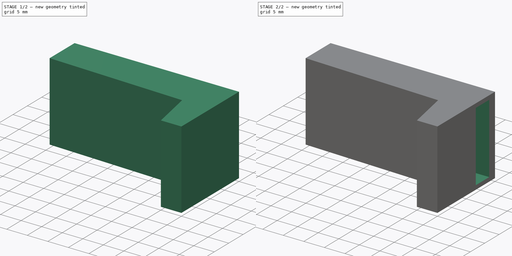
[diagram: build sequence overview — one tinted view per stage of 2, left to right]
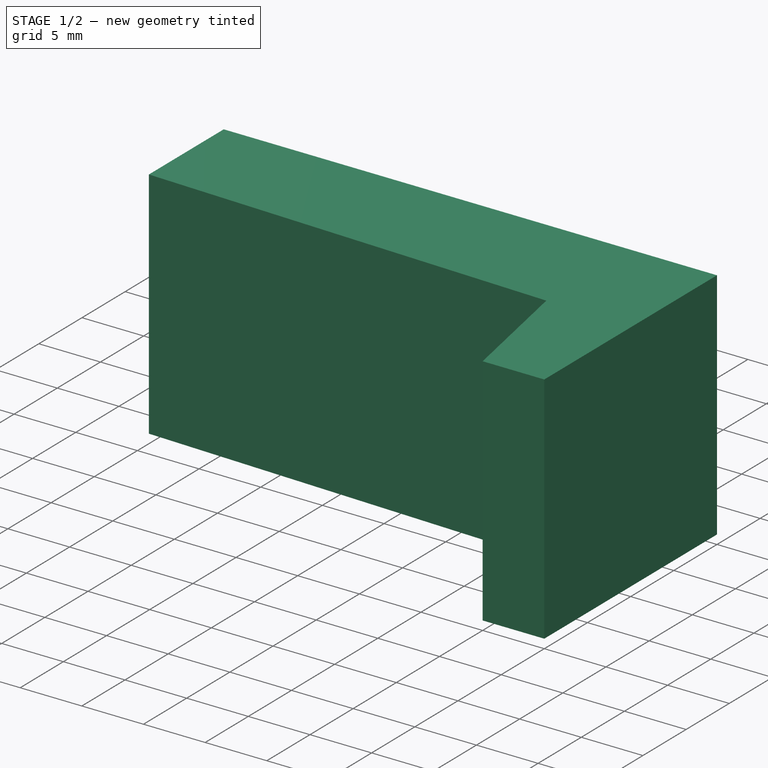
[diagram: stage 1 of 2 — iso view after this stage's code; geometry added in this stage tinted green]
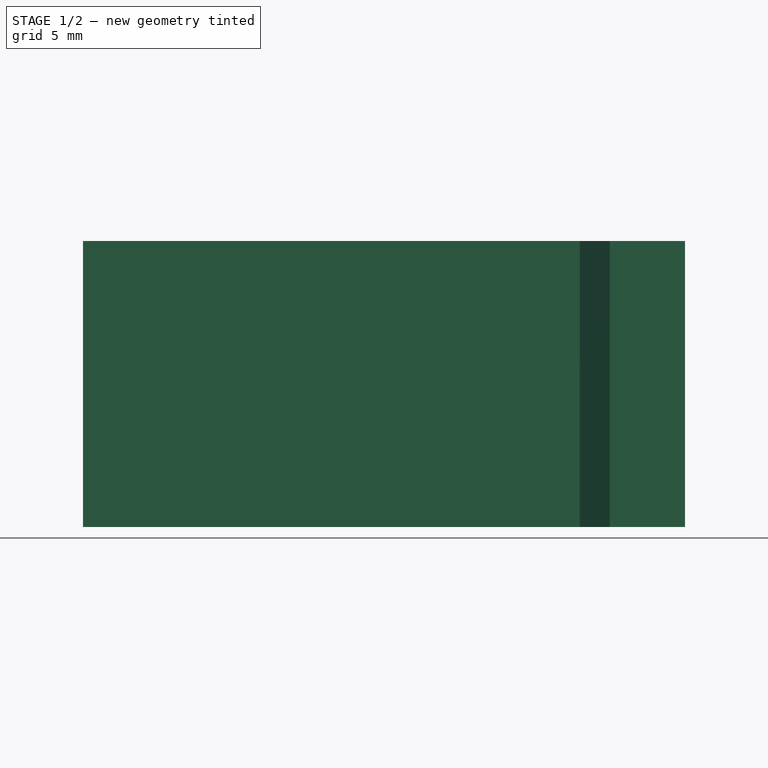
[diagram: stage 1 of 2 — front view after this stage's code; geometry added in this stage tinted green]
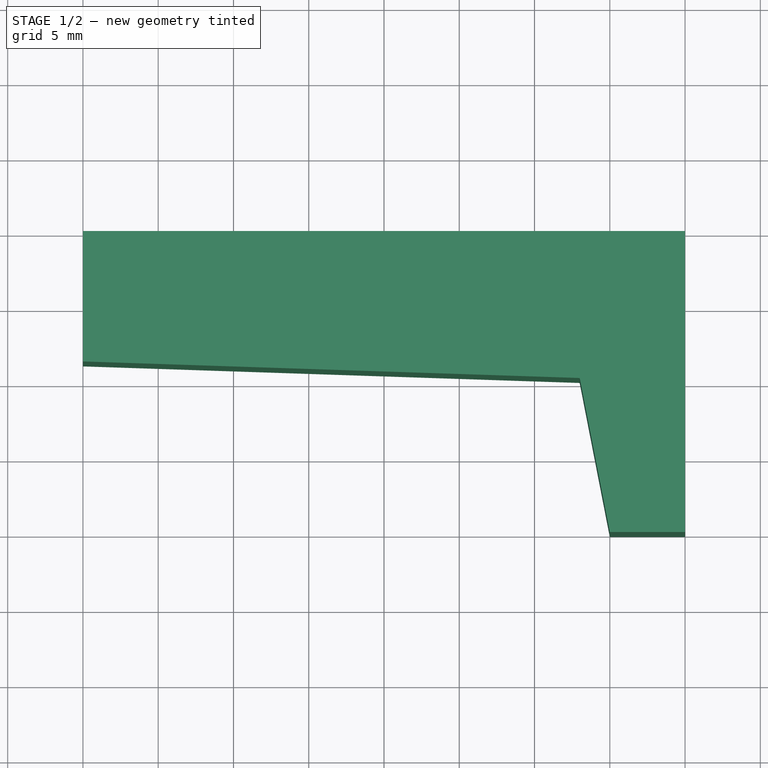
[diagram: stage 1 of 2 — top view after this stage's code; geometry added in this stage tinted green]
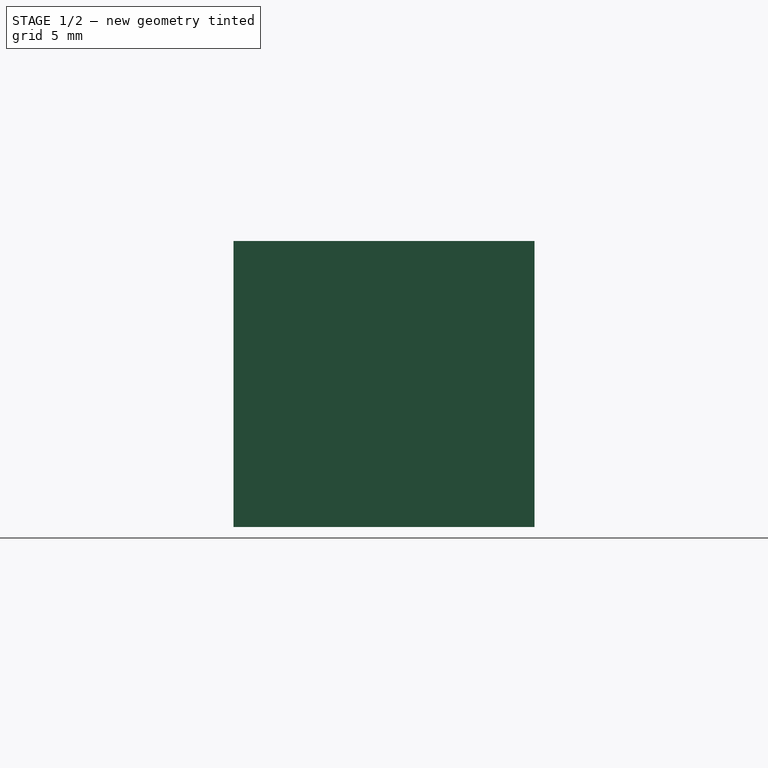
[diagram: stage 1 of 2 — right view after this stage's code; geometry added in this stage tinted green]
FCSTD DOCUMENT  (FreeCAD 0.16R6712 (Git))
Label: cnc_peg_15mm_belt_v19_10
License: All rights reserved
LicenseURL: http://en.wikipedia.org/wiki/All_rights_reserved
objects: Sketcher::SketchObject×2, PartDesign::Pad×1, PartDesign::Pocket×1
note: 6 computed .brp shape members not serialized (recipe doc carries the construction recipe); baked Part::Feature solids carry a one-line shape summary decoded from their .brp

FEATURE [Sketcher::SketchObject] Sketch  label="peg_sketch"
  sketch-geometry (10):
    g0: LineSegment [constr] StartX=0 StartY=0 StartZ=0 EndX=-60 EndY=0 EndZ=0
    g1: LineSegment StartX=0 StartY=0 StartZ=0 EndX=0 EndY=-10 EndZ=0
    g2: LineSegment StartX=0 StartY=0 StartZ=0 EndX=-40 EndY=0 EndZ=0
    g3: LineSegment [constr] StartX=-60 StartY=0 StartZ=0 EndX=-60 EndY=-8 EndZ=0
    g4: LineSegment [constr] StartX=-60 StartY=-8 StartZ=0 EndX=0 EndY=-10 EndZ=0
    g5: LineSegment StartX=-40 StartY=0 StartZ=0 EndX=-40 EndY=-8.66667 EndZ=0
    g6: LineSegment StartX=0 StartY=-10 StartZ=0 EndX=0 EndY=-20 EndZ=0
    g7: LineSegment StartX=0 StartY=-20 StartZ=0 EndX=-5 EndY=-20 EndZ=0
    g8: LineSegment StartX=-5 StartY=-20 StartZ=0 EndX=-7 EndY=-9.76667 EndZ=0
    g9: LineSegment StartX=-40 StartY=-8.66667 StartZ=0 EndX=-7 EndY=-9.76667 EndZ=0
  constraints (28):
    c: Coincident(g0,g-1)
    c: PointOnObject(g0,g-1)
    c: Coincident(g1,g-1)
    c: PointOnObject(g1,g-2)
    c: DistanceX(g0,g0) = 60
    c: DistanceY(g1,g1) = 10
    c: Coincident(g2,g-1)
    c: PointOnObject(g2,g0)
    c: DistanceX(g2,g-1) = 40
    c: Coincident(g3,g0)
    c: Vertical(g3)
    c: DistanceY(g3,g3) = 8
    c: Coincident(g4,g3)
    c: Coincident(g5,g2)
    c: PointOnObject(g5,g4)
    c: Vertical(g5)
    c: Coincident(g4,g1)
    c: Coincident(g6,g1)
    c: PointOnObject(g6,g-2)
    c: Coincident(g7,g6)
    c: Horizontal(g7)
    c: DistanceX(g7,g7) = 5
    c: Coincident(g8,g7)
    c: PointOnObject(g8,g4)
    c: DistanceX(g8,g1) = 7
    c: Coincident(g9,g5)
    c: Coincident(g9,g8)
    c: DistanceY(g6,g6) = 10
FEATURE [PartDesign::Pad] Pad  label="peg_pad"
  Length = 19
  Length2 = 100
  Sketch = -> Sketch
  Type = 0
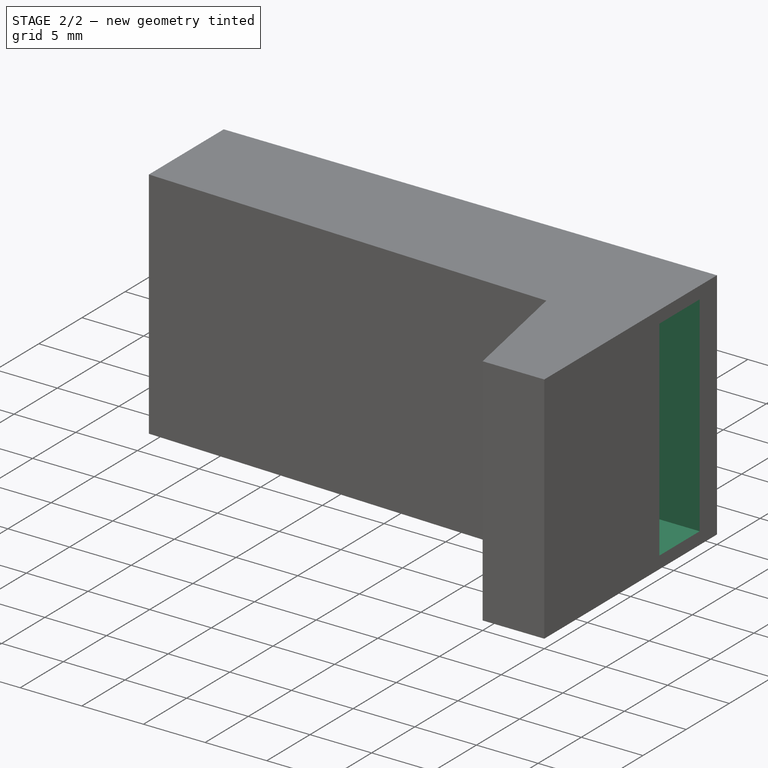
[diagram: stage 2 of 2 — iso view after this stage's code; geometry added in this stage tinted green]
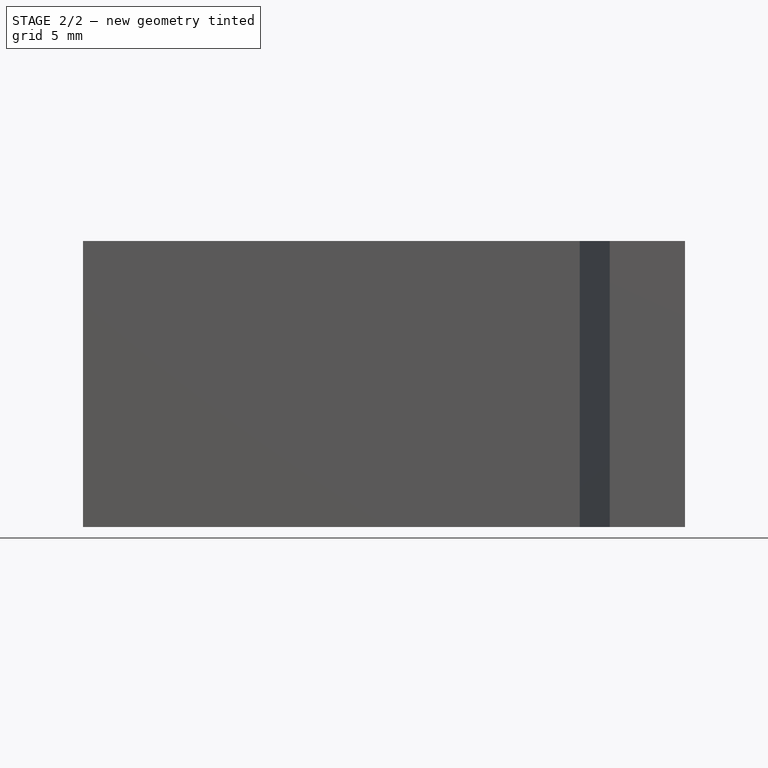
[diagram: stage 2 of 2 — front view after this stage's code; geometry added in this stage tinted green]
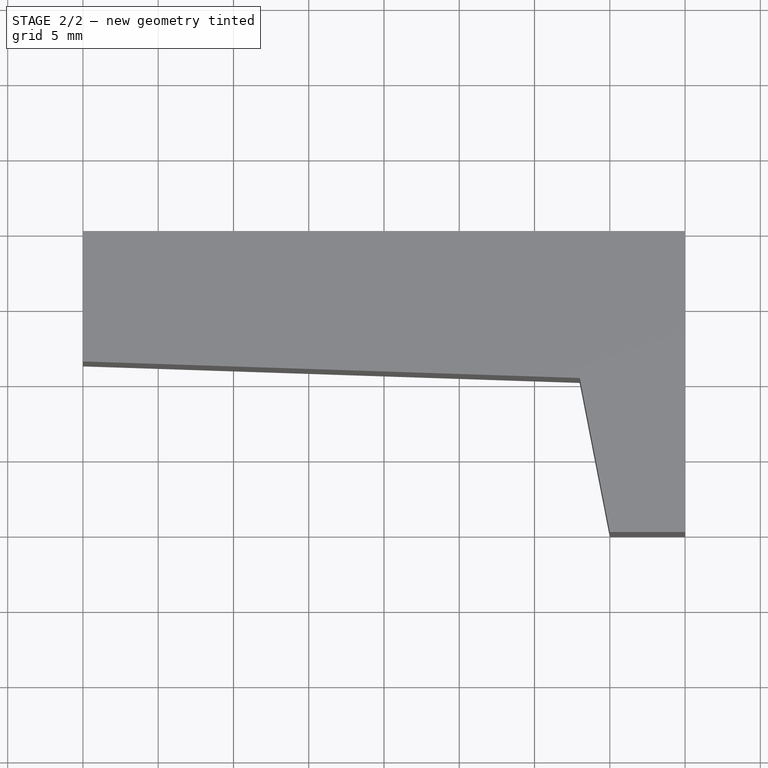
[diagram: stage 2 of 2 — top view after this stage's code; geometry added in this stage tinted green]
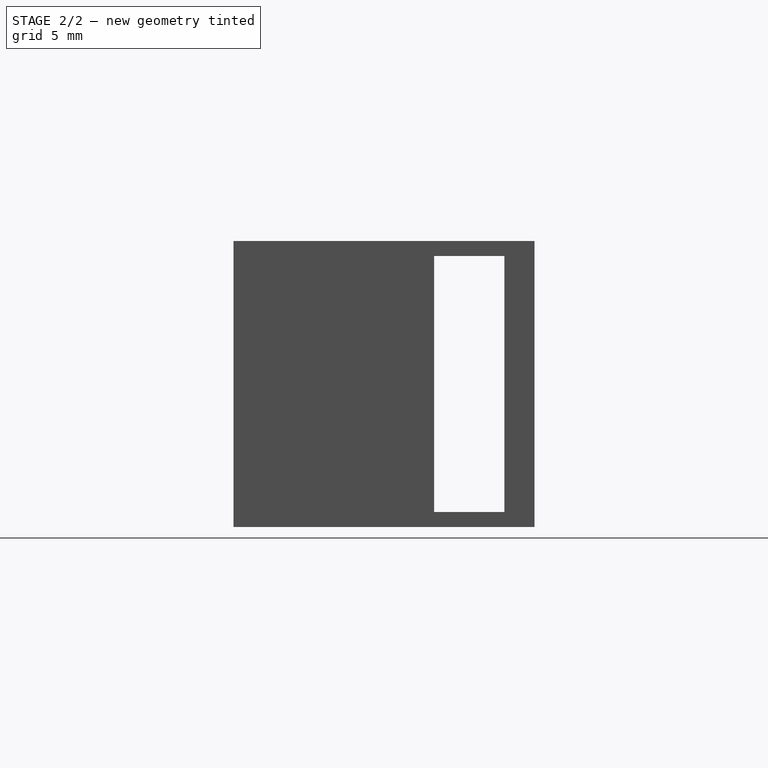
[diagram: stage 2 of 2 — right view after this stage's code; geometry added in this stage tinted green]
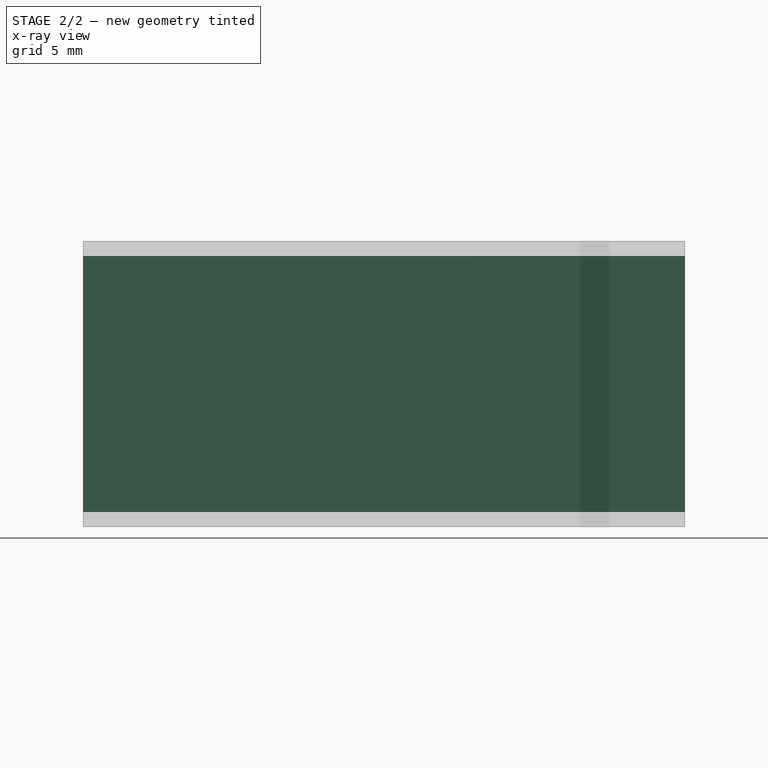
[diagram: stage 2 of 2 — x-ray composite at the front view; earlier geometry ghosted, this stage's added geometry solid]
FEATURE [Sketcher::SketchObject] Sketch001  label="belt_hole_sketch"
  ExternalGeometry = -> [Pad]
  Placement = pos=(-40,0,0) rot=(0.57735,-0.57735,-0.57735;2.0944rad)
  Support = -> Pad [Face6]
  sketch-geometry (8):
    g0: LineSegment [constr] StartX=0 StartY=0 StartZ=0 EndX=2 EndY=0 EndZ=0
    g1: LineSegment [constr] StartX=2 StartY=0 StartZ=0 EndX=2 EndY=1 EndZ=0
    g2: LineSegment [constr] StartX=2 StartY=1 StartZ=0 EndX=0 EndY=1 EndZ=0
    g3: LineSegment [constr] StartX=0 StartY=1 StartZ=0 EndX=0 EndY=0 EndZ=0
    g4: LineSegment StartX=2 StartY=1 StartZ=0 EndX=6.66667 EndY=1 EndZ=0
    g5: LineSegment StartX=6.66667 StartY=1 StartZ=0 EndX=6.66667 EndY=18 EndZ=0
    g6: LineSegment StartX=6.66667 StartY=18 StartZ=0 EndX=2 EndY=18 EndZ=0
    g7: LineSegment StartX=2 StartY=18 StartZ=0 EndX=2 EndY=1 EndZ=0
  constraints (22):
    c: Coincident(g0,g1)
    c: Coincident(g1,g2)
    c: Coincident(g2,g3)
    c: Coincident(g3,g0)
    c: Horizontal(g0)
    c: Horizontal(g2)
    c: Vertical(g1)
    c: Vertical(g3)
    c: Coincident(g0,g-1)
    c: DistanceY(g3,g3) = 1
    c: DistanceX(g0,g0) = 2
    c: Coincident(g4,g5)
    c: Coincident(g5,g6)
    c: Coincident(g6,g7)
    c: Coincident(g7,g4)
    c: Horizontal(g4)
    c: Horizontal(g6)
    c: Vertical(g5)
    c: Vertical(g7)
    c: Coincident(g4,g1)
    c: DistanceY(g7,g7) = 17
    c: DistanceX(g5,g-3) = 2
FEATURE [PartDesign::Pocket] Pocket  label="belt_hole_pocket"
  Length = 5
  Sketch = -> Sketch001
  Type = 1
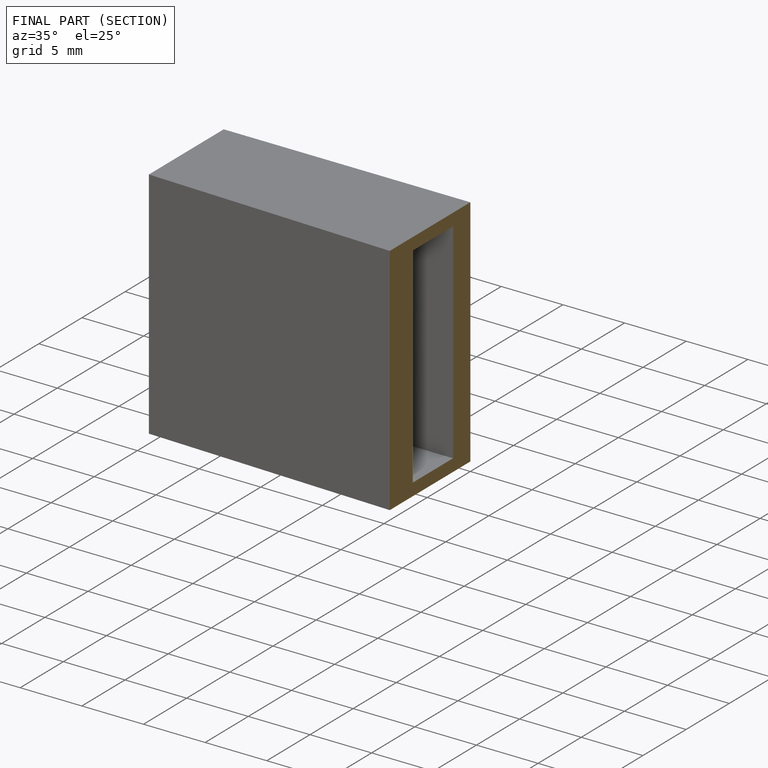
[diagram: finished part — half-section view (interior)]
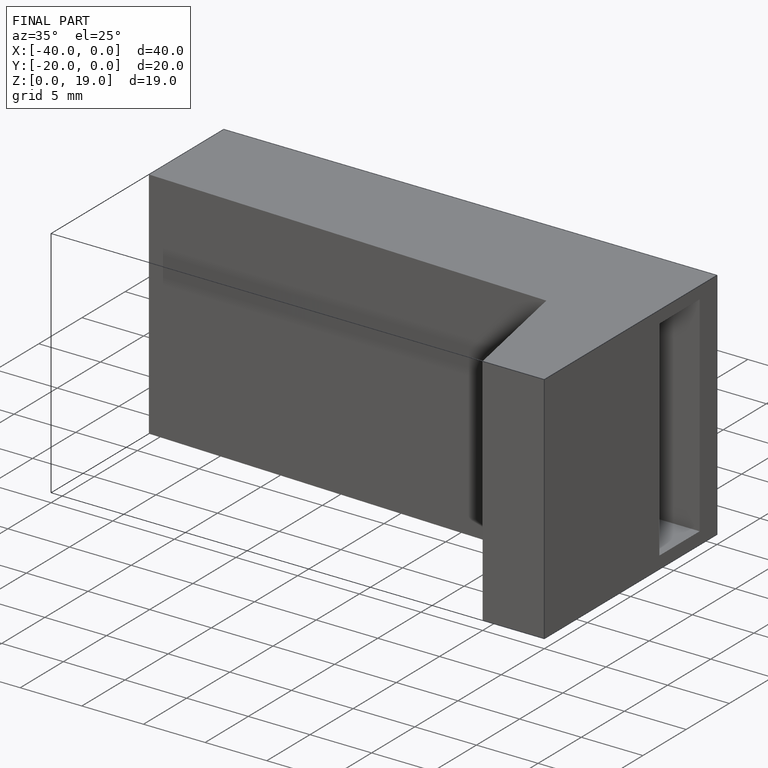
[diagram: finished part — iso view with bounding-box wireframe]
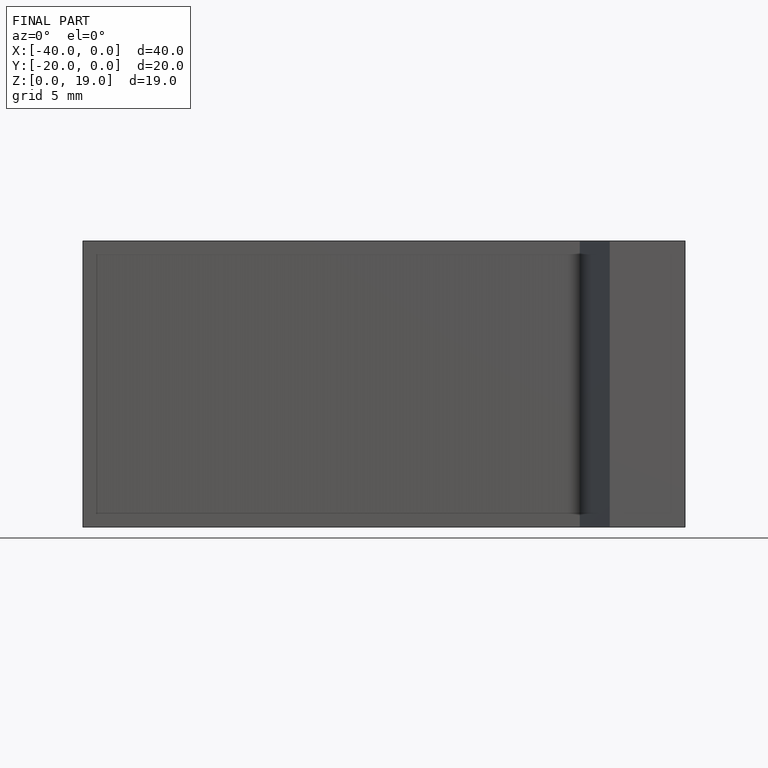
[diagram: finished part — front view with bounding-box wireframe]
